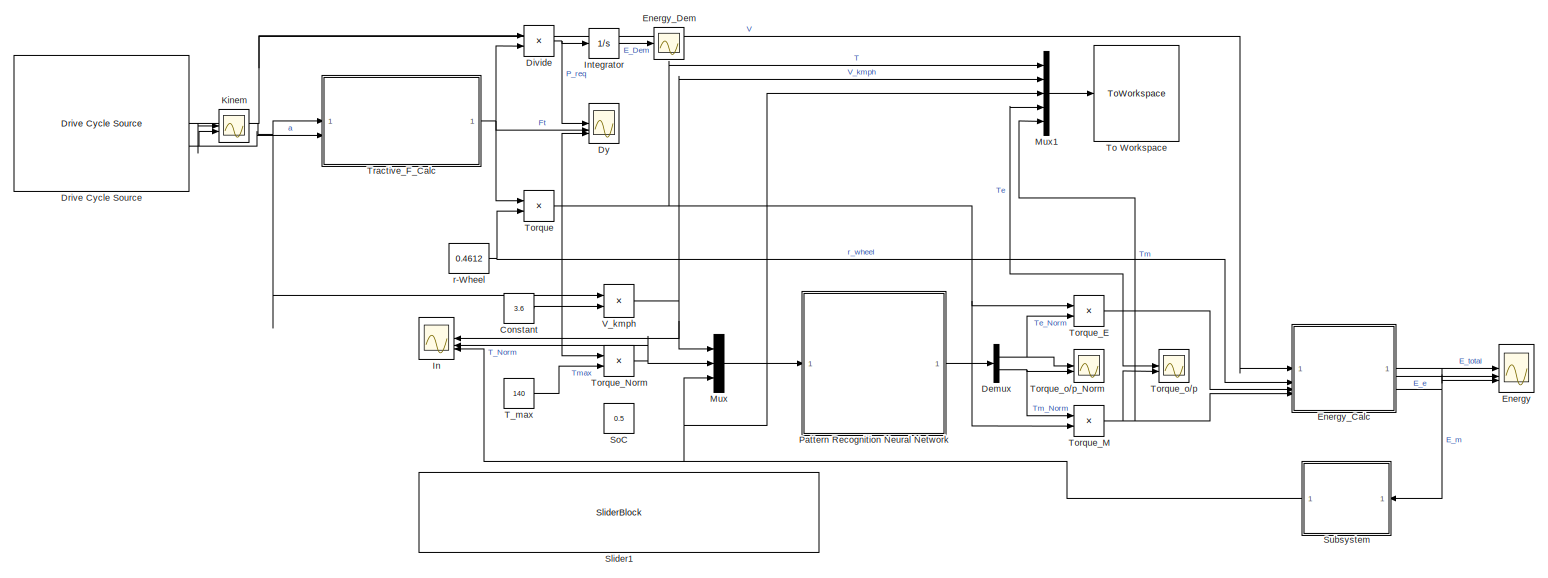
[diagram: root canvas - part 1/1, most of the canvas]
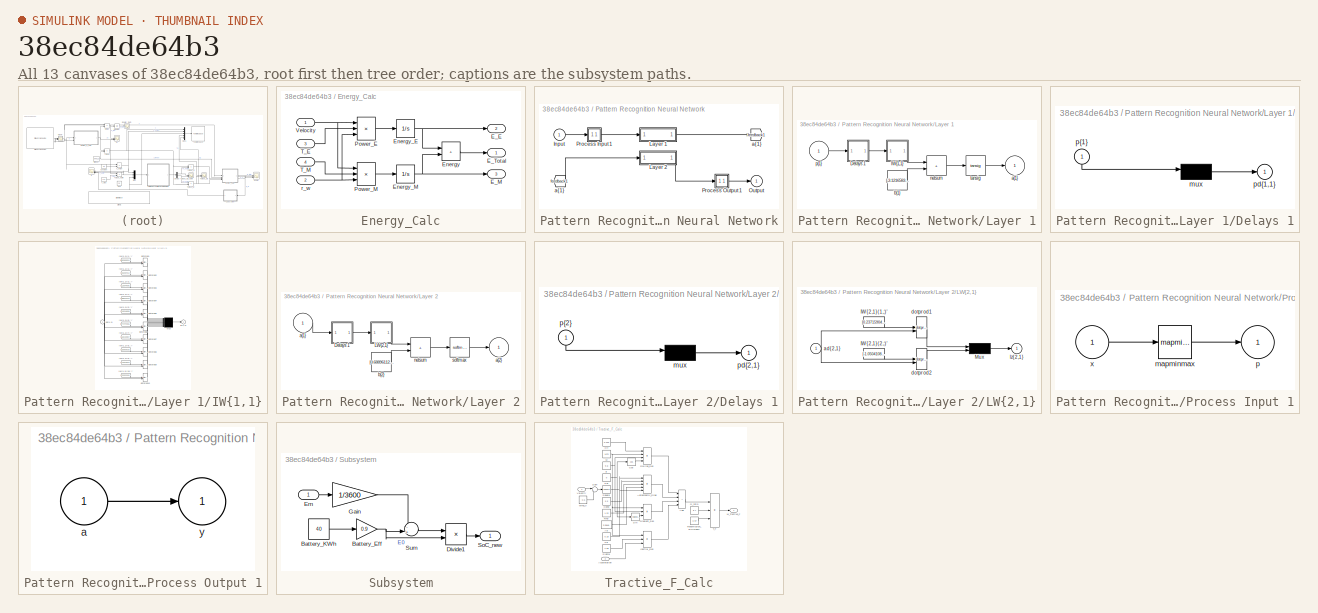
[diagram: thumbnail index - all 13 canvases of the model, root first then tree order]
MODEL slx_38ec84de64b3
KIND model
CONFIG AbsTol = auto
CONFIG EnableMultiTasking = off
CONFIG FixedStep = auto
CONFIG MaxStep = auto
CONFIG MinStep = auto
CONFIG RelTol = 1e-3
CONFIG SampleTimeConstraint = Unconstrained
CONFIG SolverName = VariableStepAuto
CONFIG StartTime = 0.0
CONFIG StopTime = 2000
BLOCK [Constant] Constant
  Value = 3.6
BLOCK [Demux] Demux
  Outputs = 2
BLOCK [Product] Divide
  Inputs = **
BLOCK [Reference] Drive Cycle Source  REF=autolibshared/Drive Cycle Source
  AttributesFormatString = %<cycleVar> (%<tfinal>)
  LibrarySourceBlock = autolibscenario/Drive Cycle Source
  SourceBlock = autolibshared/Drive Cycle Source
  SourceType = Drive Cycle Source
BLOCK [Scope] Dy
  Floating = off
  NumInputPorts = 3
  ScopeSpecificationString = Simulink.scopes.TimeScopeBlockCfg('CurrentConfiguration', extmgr.ConfigurationSet(extmgr.Configuration('Core','General UI',true),extmgr.Configuration('Core','Source UI',true),extmgr.Configuration('Sources','WiredSimulink',true,'DataLoggingVariableName','ScopeData1'),extmgr.Configuration('Visuals','Time Domain',true,'SerializedDisplays',{struct('MinYLimReal','-21822.95238','MaxYLimReal','14217.5913...<+2791ch>
BLOCK [Scope] Energy
  Floating = off
  NumInputPorts = 3
  ScopeSpecificationString = Simulink.scopes.TimeScopeBlockCfg('CurrentConfiguration', extmgr.ConfigurationSet(extmgr.Configuration('Core','General UI',true),extmgr.Configuration('Core','Source UI',true),extmgr.Configuration('Sources','WiredSimulink',true,'DataLoggingVariableName','ScopeData2'),extmgr.Configuration('Visuals','Time Domain',true,'SerializedDisplays',{struct('MinYLimReal','-52368.08056','MaxYLimReal','471312.725...<+1439ch>
BLOCK [SubSystem] Energy_Calc
BLOCK [Outport] Energy_Calc/E_E
  Port = 2
BLOCK [Outport] Energy_Calc/E_M
  Port = 3
BLOCK [Outport] Energy_Calc/E_Total
BLOCK [Sum] Energy_Calc/Energy
  IconShape = rectangular
BLOCK [Integrator] Energy_Calc/Energy_E
BLOCK [Integrator] Energy_Calc/Energy_M
BLOCK [Product] Energy_Calc/Power_E
  Inputs = **/
BLOCK [Product] Energy_Calc/Power_M
  Inputs = **/
BLOCK [Inport] Energy_Calc/T_E
  Port = 3
BLOCK [Inport] Energy_Calc/T_M
  Port = 4
BLOCK [Inport] Energy_Calc/Velocity
BLOCK [Inport] Energy_Calc/r_w
  Port = 2
BLOCK [Scope] Energy_Dem
  Floating = off
  NumInputPorts = 1
  ScopeSpecificationString = Simulink.scopes.TimeScopeBlockCfg('CurrentConfiguration', extmgr.ConfigurationSet(extmgr.Configuration('Core','General UI',true),extmgr.Configuration('Core','Source UI',true),extmgr.Configuration('Sources','WiredSimulink',true,'DataLoggingVariableName','ScopeData1'),extmgr.Configuration('Visuals','Time Domain',true,'SerializedDisplays',{struct('MinYLimReal','-52368.08056','MaxYLimReal','471312.725...<+1398ch>
BLOCK [Scope] In
  Floating = off
  NumInputPorts = 3
  ScopeSpecificationString = Simulink.scopes.TimeScopeBlockCfg('CurrentConfiguration', extmgr.ConfigurationSet(extmgr.Configuration('Core','General UI',true),extmgr.Configuration('Core','Source UI',true),extmgr.Configuration('Sources','WiredSimulink',true,'DataLoggingVariableName','ScopeData3'),extmgr.Configuration('Visuals','Time Domain',true,'SerializedDisplays',{struct('MinYLimReal','-20.10896','MaxYLimReal','103.623','YLa...<+2842ch>
BLOCK [Integrator] Integrator
BLOCK [Scope] Kinem
  Floating = off
  NumInputPorts = 2
  ScopeSpecificationString = Simulink.scopes.TimeScopeBlockCfg('CurrentConfiguration', extmgr.ConfigurationSet(extmgr.Configuration('Core','General UI',true),extmgr.Configuration('Core','Source UI',true),extmgr.Configuration('Sources','WiredSimulink',true,'DataLoggingVariableName','ScopeData4'),extmgr.Configuration('Visuals','Time Domain',true,'SerializedDisplays',{struct('MinYLimReal','-2.35069','MaxYLimReal','17.71793','YLa...<+2079ch>
BLOCK [Mux] Mux
  DisplayOption = bar
  Inputs = 3
BLOCK [Mux] Mux1
  DisplayOption = bar
  Inputs = 5
BLOCK [SubSystem] Pattern Recognition Neural Network
BLOCK [From] Pattern Recognition Neural Network/ a{1} 
  GotoTag = feedback1
BLOCK [Inport] Pattern Recognition Neural Network/Input
  PortDimensions = 3
BLOCK [SubSystem] Pattern Recognition Neural Network/Layer 1
BLOCK [SubSystem] Pattern Recognition Neural Network/Layer 1/Delays 1
BLOCK [Mux] Pattern Recognition Neural Network/Layer 1/Delays 1/mux
  Inputs = 1
BLOCK [Outport] Pattern Recognition Neural Network/Layer 1/Delays 1/pd{1,1}
BLOCK [Inport] Pattern Recognition Neural Network/Layer 1/Delays 1/p{1}
  NameLocation = left
  PortDimensions = 3
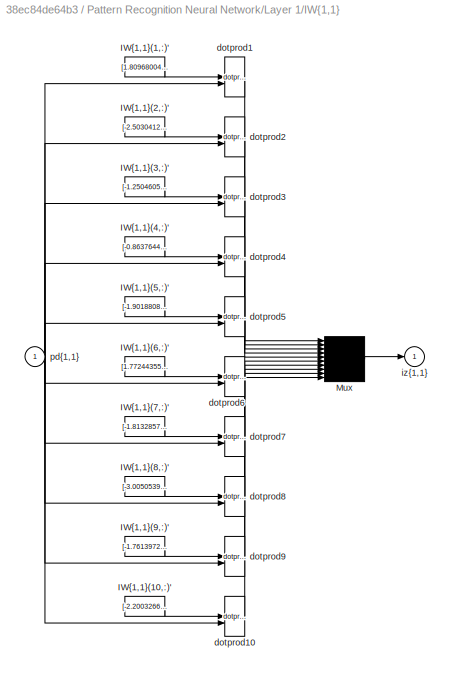
BLOCK [SubSystem] Pattern Recognition Neural Network/Layer 1/IW{1,1}
BLOCK [Constant] Pattern Recognition Neural Network/Layer 1/IW{1,1}/IW{1,1}(1,:)'
  Value = [1.809680049341583885080808613565750420093536376953125;-1.29803274419095071579022260266356170177459716796875;-1.94721369430825319568612030707299709320068359375]
BLOCK [Constant] Pattern Recognition Neural Network/Layer 1/IW{1,1}/IW{1,1}(10,:)'
  Value = [-2.200326649964929881519992704852484166622161865234375;-1.98434002242419982309229453676380217075347900390625;-0.55582207143615691702365211313008330762386322021484375]
BLOCK [Constant] Pattern Recognition Neural Network/Layer 1/IW{1,1}/IW{1,1}(2,:)'
  Value = [-2.503041277885068804920365437283180654048919677734375;-1.7035232227626651013707714810152538120746612548828125;0.7293309221858608193400641539483331143856048583984375]
BLOCK [Constant] Pattern Recognition Neural Network/Layer 1/IW{1,1}/IW{1,1}(3,:)'
  Value = [-1.25046052203992008600152985309250652790069580078125;1.920277686016429452564580060425214469432830810546875;-1.1156783076317129399512850795872509479522705078125]
BLOCK [Constant] Pattern Recognition Neural Network/Layer 1/IW{1,1}/IW{1,1}(4,:)'
  Value = [-0.8637644016829726378858822499751113355159759521484375;-1.059879753117998202327498802333138883113861083984375;2.486037393602149148108537701773457229137420654296875]
BLOCK [Constant] Pattern Recognition Neural Network/Layer 1/IW{1,1}/IW{1,1}(5,:)'
  Value = [-1.90188088004975508482630175421945750713348388671875;-1.4470596636521062539060267226886935532093048095703125;1.214356180292597731096293500741012394428253173828125]
BLOCK [Constant] Pattern Recognition Neural Network/Layer 1/IW{1,1}/IW{1,1}(6,:)'
  Value = [1.77244355559165267521848363685421645641326904296875;2.226945650451896074883961773593910038471221923828125;-1.298928939221272838011600470053963363170623779296875]
BLOCK [Constant] Pattern Recognition Neural Network/Layer 1/IW{1,1}/IW{1,1}(7,:)'
  Value = [-1.8132857848954564428112234963919036090373992919921875;3.634415364983365481776900196564383804798126220703125;-0.6002354328806307481869453113176859915256500244140625]
BLOCK [Constant] Pattern Recognition Neural Network/Layer 1/IW{1,1}/IW{1,1}(8,:)'
  Value = [-3.005053989436847761140825241454876959323883056640625;0.0740553817627963850700467673959792591631412506103515625;-1.320698064026931017878041529911570250988006591796875]
BLOCK [Constant] Pattern Recognition Neural Network/Layer 1/IW{1,1}/IW{1,1}(9,:)'
  Value = [-1.7613972260887365006709615045110695064067840576171875;-2.45115492950296864904657923034392297267913818359375;-0.58885496176574603222064752117148600518703460693359375]
BLOCK [Mux] Pattern Recognition Neural Network/Layer 1/IW{1,1}/Mux
  Inputs = 10
BLOCK [Reference] Pattern Recognition Neural Network/Layer 1/IW{1,1}/dotprod1  REF=neural/Weight Functions/dotprod
  SourceBlock = neural/Weight Functions/dotprod
  SourceType = DOTPROD
BLOCK [Reference] Pattern Recognition Neural Network/Layer 1/IW{1,1}/dotprod10  REF=neural/Weight Functions/dotprod
  SourceBlock = neural/Weight Functions/dotprod
  SourceType = DOTPROD
BLOCK [Reference] Pattern Recognition Neural Network/Layer 1/IW{1,1}/dotprod2  REF=neural/Weight Functions/dotprod
  SourceBlock = neural/Weight Functions/dotprod
  SourceType = DOTPROD
BLOCK [Reference] Pattern Recognition Neural Network/Layer 1/IW{1,1}/dotprod3  REF=neural/Weight Functions/dotprod
  SourceBlock = neural/Weight Functions/dotprod
  SourceType = DOTPROD
BLOCK [Reference] Pattern Recognition Neural Network/Layer 1/IW{1,1}/dotprod4  REF=neural/Weight Functions/dotprod
  SourceBlock = neural/Weight Functions/dotprod
  SourceType = DOTPROD
BLOCK [Reference] Pattern Recognition Neural Network/Layer 1/IW{1,1}/dotprod5  REF=neural/Weight Functions/dotprod
  SourceBlock = neural/Weight Functions/dotprod
  SourceType = DOTPROD
BLOCK [Reference] Pattern Recognition Neural Network/Layer 1/IW{1,1}/dotprod6  REF=neural/Weight Functions/dotprod
  SourceBlock = neural/Weight Functions/dotprod
  SourceType = DOTPROD
BLOCK [Reference] Pattern Recognition Neural Network/Layer 1/IW{1,1}/dotprod7  REF=neural/Weight Functions/dotprod
  SourceBlock = neural/Weight Functions/dotprod
  SourceType = DOTPROD
BLOCK [Reference] Pattern Recognition Neural Network/Layer 1/IW{1,1}/dotprod8  REF=neural/Weight Functions/dotprod
  SourceBlock = neural/Weight Functions/dotprod
  SourceType = DOTPROD
BLOCK [Reference] Pattern Recognition Neural Network/Layer 1/IW{1,1}/dotprod9  REF=neural/Weight Functions/dotprod
  SourceBlock = neural/Weight Functions/dotprod
  SourceType = DOTPROD
BLOCK [Outport] Pattern Recognition Neural Network/Layer 1/IW{1,1}/iz{1,1}
BLOCK [Inport] Pattern Recognition Neural Network/Layer 1/IW{1,1}/pd{1,1}
  PortDimensions = 3
BLOCK [Outport] Pattern Recognition Neural Network/Layer 1/a{1}
  InitialOutput = [0;0;0;0;0;0;0;0;0;0]
BLOCK [Constant] Pattern Recognition Neural Network/Layer 1/b{1}
  Value = [-3.121658398044879323407485571806319057941436767578125;2.229780117163802088953161728568375110626220703125;2.4857552880959321583986820769496262073516845703125;1.5696614955376946287657347056665457785129547119140625;0.5999621571822955079511530129821039736270904541015625;1.20668264528445234873288427479565143585205078125;-0.31898327073527088515447758254595100879669189453125;-1.418588157217827605549587...<+137ch>
BLOCK [Sum] Pattern Recognition Neural Network/Layer 1/netsum
  IconShape = rectangular
  InputSameDT = on
  Inputs = 2
  OutDataTypeStr = Inherit: Same as first input
  SaturateOnIntegerOverflow = on
BLOCK [Inport] Pattern Recognition Neural Network/Layer 1/p{1}
  PortDimensions = 3
BLOCK [Reference] Pattern Recognition Neural Network/Layer 1/tansig  REF=neural/Transfer Functions/tansig
  SourceBlock = neural/Transfer Functions/tansig
  SourceType = TANSIG
BLOCK [SubSystem] Pattern Recognition Neural Network/Layer 2
BLOCK [SubSystem] Pattern Recognition Neural Network/Layer 2/Delays 1
BLOCK [Mux] Pattern Recognition Neural Network/Layer 2/Delays 1/mux
  Inputs = 1
BLOCK [Outport] Pattern Recognition Neural Network/Layer 2/Delays 1/pd{2,1}
BLOCK [Inport] Pattern Recognition Neural Network/Layer 2/Delays 1/p{2}
  NameLocation = left
  PortDimensions = 10
BLOCK [SubSystem] Pattern Recognition Neural Network/Layer 2/LW{2,1}
BLOCK [Constant] Pattern Recognition Neural Network/Layer 2/LW{2,1}/IW{2,1}(1,:)'
  Value = [0.237159046583396815321975736878812313079833984375;-0.875724645822264502470488878316245973110198974609375;-0.53529688177007306304489020476466976106166839599609375;-0.226659123707784015966382185069960542023181915283203125;-0.337050941980124918462280447783996351063251495361328125;1.6050257522858271119758910572272725403308868408203125;1.840196591830167704983978183008730411529541015625;-1.27376460610...<+153ch>
BLOCK [Constant] Pattern Recognition Neural Network/Layer 2/LW{2,1}/IW{2,1}(2,:)'
  Value = [-1.0504108830810727770455059726373292505741119384765625;1.0027183607584071456386709542130120098590850830078125;0.451445715850454565298832676489837467670440673828125;0.6645387970258480603291673105559311807155609130859375;-0.031331776429953640816794546708479174412786960601806640625;-0.7611510173521391919848610996268689632415771484375;-1.7043134927442284975995789864100515842437744140625;0.7147488673...<+156ch>
BLOCK [Mux] Pattern Recognition Neural Network/Layer 2/LW{2,1}/Mux
  Inputs = 2
BLOCK [Inport] Pattern Recognition Neural Network/Layer 2/LW{2,1}/ad{2,1}
  PortDimensions = 10
BLOCK [Reference] Pattern Recognition Neural Network/Layer 2/LW{2,1}/dotprod1  REF=neural/Weight Functions/dotprod
  SourceBlock = neural/Weight Functions/dotprod
  SourceType = DOTPROD
BLOCK [Reference] Pattern Recognition Neural Network/Layer 2/LW{2,1}/dotprod2  REF=neural/Weight Functions/dotprod
  SourceBlock = neural/Weight Functions/dotprod
  SourceType = DOTPROD
BLOCK [Outport] Pattern Recognition Neural Network/Layer 2/LW{2,1}/lz{2,1}
BLOCK [Inport] Pattern Recognition Neural Network/Layer 2/a{1} 
  PortDimensions = 10
BLOCK [Outport] Pattern Recognition Neural Network/Layer 2/a{2}
  InitialOutput = [0;0]
BLOCK [Constant] Pattern Recognition Neural Network/Layer 2/b{2}
  Value = [0.68896112024296984888138695168890990316867828369140625;-0.6375193814406003856021243336726911365985870361328125]
BLOCK [Sum] Pattern Recognition Neural Network/Layer 2/netsum
  IconShape = rectangular
  InputSameDT = on
  Inputs = 2
  OutDataTypeStr = Inherit: Same as first input
  SaturateOnIntegerOverflow = on
BLOCK [Reference] Pattern Recognition Neural Network/Layer 2/softmax  REF=neural/Transfer Functions/softmax
  SourceBlock = neural/Transfer Functions/softmax
  SourceType = SOFTMAX
BLOCK [Outport] Pattern Recognition Neural Network/Output
  InitialOutput = [0;0]
BLOCK [SubSystem] Pattern Recognition Neural Network/Process Input 1
BLOCK [Reference] Pattern Recognition Neural Network/Process Input 1/mapminmax  REF=neural/Processing Functions/mapminmax
  SourceBlock = neural/Processing Functions/mapminmax
  SourceType = MAPMINMAX Preprocess
BLOCK [Outport] Pattern Recognition Neural Network/Process Input 1/p
  PortDimensions = 3
BLOCK [Inport] Pattern Recognition Neural Network/Process Input 1/x
  PortDimensions = 3
BLOCK [SubSystem] Pattern Recognition Neural Network/Process Output 1
BLOCK [Inport] Pattern Recognition Neural Network/Process Output 1/a
  PortDimensions = 2
BLOCK [Outport] Pattern Recognition Neural Network/Process Output 1/y
  PortDimensions = 2
BLOCK [Goto] Pattern Recognition Neural Network/a{1}
  GotoTag = feedback1
BLOCK [SliderBlock] Slider1
  ScaleMax = 1
BLOCK [Constant] SoC
  Value = 0.5
BLOCK [SubSystem] Subsystem
BLOCK [Gain] Subsystem/Battery_Eff
  Gain = 0.9
BLOCK [Constant] Subsystem/Battery_KWh
  Value = 40
BLOCK [Product] Subsystem/Divide1
  Inputs = */
BLOCK [Inport] Subsystem/Em
BLOCK [Gain] Subsystem/Gain
  Gain = 1/3600
BLOCK [Outport] Subsystem/SoC_new
BLOCK [Sum] Subsystem/Sum
  Inputs = -+|
BLOCK [Constant] T_max
  Value = 140
BLOCK [ToWorkspace] To Workspace
  MaxDataPoints = inf
  SampleTime = -1
  SaveFormat = Timeseries
  VariableName = Graph
BLOCK [Product] Torque
  Inputs = **
BLOCK [Product] Torque_E
  Inputs = **
BLOCK [Product] Torque_M
  Inputs = **
BLOCK [Product] Torque_Norm
  Inputs = */
BLOCK [Scope] Torque_o//p
  Floating = off
  NumInputPorts = 2
  ScopeSpecificationString = Simulink.scopes.TimeScopeBlockCfg('CurrentConfiguration', extmgr.ConfigurationSet(extmgr.Configuration('Core','General UI',true),extmgr.Configuration('Core','Source UI',true),extmgr.Configuration('Sources','WiredSimulink',true,'DataLoggingVariableName','ScopeData5'),extmgr.Configuration('Visuals','Time Domain',true,'SerializedDisplays',{struct('MinYLimReal','-10.22644','MaxYLimReal','124.49102','Y...<+2065ch>
BLOCK [Scope] Torque_o//p_Norm
  Floating = off
  NumInputPorts = 2
  ScopeSpecificationString = Simulink.scopes.TimeScopeBlockCfg('CurrentConfiguration', extmgr.ConfigurationSet(extmgr.Configuration('Core','General UI',true),extmgr.Configuration('Core','Source UI',true),extmgr.Configuration('Sources','WiredSimulink',true,'DataLoggingVariableName','ScopeData6'),extmgr.Configuration('Visuals','Time Domain',true,'SerializedDisplays',{struct('MinYLimReal','-0.11963','MaxYLimReal','1.121','YLabel...<+2030ch>
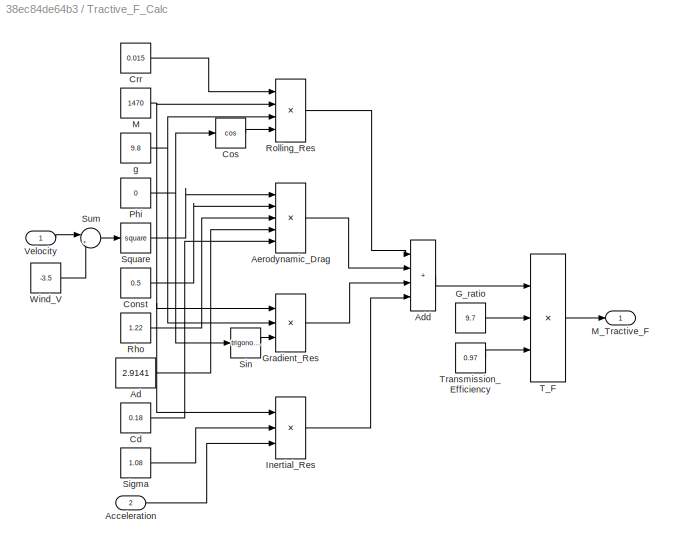
BLOCK [SubSystem] Tractive_F_Calc
BLOCK [Inport] Tractive_F_Calc/Acceleration
  Port = 2
BLOCK [Constant] Tractive_F_Calc/Ad
  Value = 2.9141
BLOCK [Sum] Tractive_F_Calc/Add
  IconShape = rectangular
  Inputs = ++++
BLOCK [Product] Tractive_F_Calc/Aerodynamic_Drag
  Inputs = *****
BLOCK [Constant] Tractive_F_Calc/Cd
  Value = 0.18
BLOCK [Constant] Tractive_F_Calc/Const
  Value = 0.5
BLOCK [Trigonometry] Tractive_F_Calc/Cos
  Operator = cos
BLOCK [Constant] Tractive_F_Calc/Crr
  Value = 0.015
BLOCK [Constant] Tractive_F_Calc/G_ratio
  Value = 9.7
BLOCK [Product] Tractive_F_Calc/Gradient_Res
  Inputs = ***
BLOCK [Product] Tractive_F_Calc/Inertial_Res
  Inputs = ***
BLOCK [Constant] Tractive_F_Calc/M
  Value = 1470
BLOCK [Outport] Tractive_F_Calc/M_Tractive_F
BLOCK [Constant] Tractive_F_Calc/Phi
  Value = 0
BLOCK [Constant] Tractive_F_Calc/Rho
  Value = 1.22
BLOCK [Product] Tractive_F_Calc/Rolling_Res
  Inputs = ****
BLOCK [Constant] Tractive_F_Calc/Sigma
  Value = 1.08
BLOCK [Trigonometry] Tractive_F_Calc/Sin
BLOCK [Math] Tractive_F_Calc/Square
  Operator = square
BLOCK [Sum] Tractive_F_Calc/Sum
  Inputs = |+-
BLOCK [Product] Tractive_F_Calc/T_F
  Inputs = *//
BLOCK [Constant] Tractive_F_Calc/Transmission_Efficiency
  Value = 0.97
BLOCK [Inport] Tractive_F_Calc/Velocity
BLOCK [Constant] Tractive_F_Calc/Wind_V
  Value = -3.5
BLOCK [Constant] Tractive_F_Calc/g
  Value = 9.8
BLOCK [Product] V_kmph
  Inputs = **
BLOCK [Constant] r-Wheel
  Value = 0.4612
LINE Constant:1 -> V_kmph:2
NET Demux:1 -> Torque_E:2, Torque_o//p_Norm:1
NET Demux:2 -> Torque_M:1, Torque_o//p_Norm:2
NET Divide:1 -> Dy:1, Integrator:1
NET Drive Cycle Source:1 -> Divide:1, Energy_Calc:1, Kinem:1, Tractive_F_Calc:1, V_kmph:1
NET Drive Cycle Source:2 -> Kinem:2, Tractive_F_Calc:2
LINE Energy_Calc/Energy:1 -> Energy_Calc/E_Total:1
NET Energy_Calc/Energy_E:1 -> Energy_Calc/E_E:1, Energy_Calc/Energy:1
NET Energy_Calc/Energy_M:1 -> Energy_Calc/E_M:1, Energy_Calc/Energy:2
LINE Energy_Calc/Power_E:1 -> Energy_Calc/Energy_E:1
LINE Energy_Calc/Power_M:1 -> Energy_Calc/Energy_M:1
LINE Energy_Calc/T_E:1 -> Energy_Calc/Power_E:2
LINE Energy_Calc/T_M:1 -> Energy_Calc/Power_M:2
NET Energy_Calc/Velocity:1 -> Energy_Calc/Power_E:1, Energy_Calc/Power_M:1
NET Energy_Calc/r_w:1 -> Energy_Calc/Power_E:3, Energy_Calc/Power_M:3
LINE Energy_Calc:1 -> Energy:1
LINE Energy_Calc:2 -> Energy:2
NET Energy_Calc:3 -> Energy:3, Subsystem:1
LINE Integrator:1 -> Energy_Dem:1
LINE Mux1:1 -> To Workspace:1
LINE Mux:1 -> Pattern Recognition Neural Network:1
LINE Pattern Recognition Neural Network/ a{1} :1 -> Pattern Recognition Neural Network/Layer 2:1
LINE Pattern Recognition Neural Network/Input:1 -> Pattern Recognition Neural Network/Process Input 1:1
LINE Pattern Recognition Neural Network/Layer 1/Delays 1/mux:1 -> Pattern Recognition Neural Network/Layer 1/Delays 1/pd{1,1}:1
LINE Pattern Recognition Neural Network/Layer 1/Delays 1/p{1}:1 -> Pattern Recognition Neural Network/Layer 1/Delays 1/mux:1
LINE Pattern Recognition Neural Network/Layer 1/Delays 1:1 -> Pattern Recognition Neural Network/Layer 1/IW{1,1}:1
LINE Pattern Recognition Neural Network/Layer 1/IW{1,1}/IW{1,1}(1,:)':1 -> Pattern Recognition Neural Network/Layer 1/IW{1,1}/dotprod1:1
LINE Pattern Recognition Neural Network/Layer 1/IW{1,1}/IW{1,1}(10,:)':1 -> Pattern Recognition Neural Network/Layer 1/IW{1,1}/dotprod10:1
LINE Pattern Recognition Neural Network/Layer 1/IW{1,1}/IW{1,1}(2,:)':1 -> Pattern Recognition Neural Network/Layer 1/IW{1,1}/dotprod2:1
LINE Pattern Recognition Neural Network/Layer 1/IW{1,1}/IW{1,1}(3,:)':1 -> Pattern Recognition Neural Network/Layer 1/IW{1,1}/dotprod3:1
LINE Pattern Recognition Neural Network/Layer 1/IW{1,1}/IW{1,1}(4,:)':1 -> Pattern Recognition Neural Network/Layer 1/IW{1,1}/dotprod4:1
LINE Pattern Recognition Neural Network/Layer 1/IW{1,1}/IW{1,1}(5,:)':1 -> Pattern Recognition Neural Network/Layer 1/IW{1,1}/dotprod5:1
LINE Pattern Recognition Neural Network/Layer 1/IW{1,1}/IW{1,1}(6,:)':1 -> Pattern Recognition Neural Network/Layer 1/IW{1,1}/dotprod6:1
LINE Pattern Recognition Neural Network/Layer 1/IW{1,1}/IW{1,1}(7,:)':1 -> Pattern Recognition Neural Network/Layer 1/IW{1,1}/dotprod7:1
LINE Pattern Recognition Neural Network/Layer 1/IW{1,1}/IW{1,1}(8,:)':1 -> Pattern Recognition Neural Network/Layer 1/IW{1,1}/dotprod8:1
LINE Pattern Recognition Neural Network/Layer 1/IW{1,1}/IW{1,1}(9,:)':1 -> Pattern Recognition Neural Network/Layer 1/IW{1,1}/dotprod9:1
LINE Pattern Recognition Neural Network/Layer 1/IW{1,1}/Mux:1 -> Pattern Recognition Neural Network/Layer 1/IW{1,1}/iz{1,1}:1
LINE Pattern Recognition Neural Network/Layer 1/IW{1,1}/dotprod10:1 -> Pattern Recognition Neural Network/Layer 1/IW{1,1}/Mux:10
LINE Pattern Recognition Neural Network/Layer 1/IW{1,1}/dotprod1:1 -> Pattern Recognition Neural Network/Layer 1/IW{1,1}/Mux:1
LINE Pattern Recognition Neural Network/Layer 1/IW{1,1}/dotprod2:1 -> Pattern Recognition Neural Network/Layer 1/IW{1,1}/Mux:2
LINE Pattern Recognition Neural Network/Layer 1/IW{1,1}/dotprod3:1 -> Pattern Recognition Neural Network/Layer 1/IW{1,1}/Mux:3
LINE Pattern Recognition Neural Network/Layer 1/IW{1,1}/dotprod4:1 -> Pattern Recognition Neural Network/Layer 1/IW{1,1}/Mux:4
LINE Pattern Recognition Neural Network/Layer 1/IW{1,1}/dotprod5:1 -> Pattern Recognition Neural Network/Layer 1/IW{1,1}/Mux:5
LINE Pattern Recognition Neural Network/Layer 1/IW{1,1}/dotprod6:1 -> Pattern Recognition Neural Network/Layer 1/IW{1,1}/Mux:6
LINE Pattern Recognition Neural Network/Layer 1/IW{1,1}/dotprod7:1 -> Pattern Recognition Neural Network/Layer 1/IW{1,1}/Mux:7
LINE Pattern Recognition Neural Network/Layer 1/IW{1,1}/dotprod8:1 -> Pattern Recognition Neural Network/Layer 1/IW{1,1}/Mux:8
LINE Pattern Recognition Neural Network/Layer 1/IW{1,1}/dotprod9:1 -> Pattern Recognition Neural Network/Layer 1/IW{1,1}/Mux:9
NET Pattern Recognition Neural Network/Layer 1/IW{1,1}/pd{1,1}:1 -> Pattern Recognition Neural Network/Layer 1/IW{1,1}/dotprod10:2, Pattern Recognition Neural Network/Layer 1/IW{1,1}/dotprod1:2, Pattern Recognition Neural Network/Layer 1/IW{1,1}/dotprod2:2, Pattern Recognition Neural Network/Layer 1/IW{1,1}/dotprod3:2, Pattern Recognition Neural Network/Layer 1/IW{1,1}/dotprod4:2, Pattern Recognition Neural Network/Layer 1/IW{1,1}/dotprod5:2, Pattern Recognition Neural Network/Layer 1/IW{1,1}/dotprod6:2, Pattern Recognition Neural Network/Layer 1/IW{1,1}/dotprod7:2, Pattern Recognition Neural Network/Layer 1/IW{1,1}/dotprod8:2, Pattern Recognition Neural Network/Layer 1/IW{1,1}/dotprod9:2
LINE Pattern Recognition Neural Network/Layer 1/IW{1,1}:1 -> Pattern Recognition Neural Network/Layer 1/netsum:1
LINE Pattern Recognition Neural Network/Layer 1/b{1}:1 -> Pattern Recognition Neural Network/Layer 1/netsum:2
LINE Pattern Recognition Neural Network/Layer 1/netsum:1 -> Pattern Recognition Neural Network/Layer 1/tansig:1
LINE Pattern Recognition Neural Network/Layer 1/p{1}:1 -> Pattern Recognition Neural Network/Layer 1/Delays 1:1
LINE Pattern Recognition Neural Network/Layer 1/tansig:1 -> Pattern Recognition Neural Network/Layer 1/a{1}:1
LINE Pattern Recognition Neural Network/Layer 1:1 -> Pattern Recognition Neural Network/a{1}:1
LINE Pattern Recognition Neural Network/Layer 2/Delays 1/mux:1 -> Pattern Recognition Neural Network/Layer 2/Delays 1/pd{2,1}:1
LINE Pattern Recognition Neural Network/Layer 2/Delays 1/p{2}:1 -> Pattern Recognition Neural Network/Layer 2/Delays 1/mux:1
LINE Pattern Recognition Neural Network/Layer 2/Delays 1:1 -> Pattern Recognition Neural Network/Layer 2/LW{2,1}:1
LINE Pattern Recognition Neural Network/Layer 2/LW{2,1}/IW{2,1}(1,:)':1 -> Pattern Recognition Neural Network/Layer 2/LW{2,1}/dotprod1:1
LINE Pattern Recognition Neural Network/Layer 2/LW{2,1}/IW{2,1}(2,:)':1 -> Pattern Recognition Neural Network/Layer 2/LW{2,1}/dotprod2:1
LINE Pattern Recognition Neural Network/Layer 2/LW{2,1}/Mux:1 -> Pattern Recognition Neural Network/Layer 2/LW{2,1}/lz{2,1}:1
NET Pattern Recognition Neural Network/Layer 2/LW{2,1}/ad{2,1}:1 -> Pattern Recognition Neural Network/Layer 2/LW{2,1}/dotprod1:2, Pattern Recognition Neural Network/Layer 2/LW{2,1}/dotprod2:2
LINE Pattern Recognition Neural Network/Layer 2/LW{2,1}/dotprod1:1 -> Pattern Recognition Neural Network/Layer 2/LW{2,1}/Mux:1
LINE Pattern Recognition Neural Network/Layer 2/LW{2,1}/dotprod2:1 -> Pattern Recognition Neural Network/Layer 2/LW{2,1}/Mux:2
LINE Pattern Recognition Neural Network/Layer 2/LW{2,1}:1 -> Pattern Recognition Neural Network/Layer 2/netsum:1
LINE Pattern Recognition Neural Network/Layer 2/a{1} :1 -> Pattern Recognition Neural Network/Layer 2/Delays 1:1
LINE Pattern Recognition Neural Network/Layer 2/b{2}:1 -> Pattern Recognition Neural Network/Layer 2/netsum:2
LINE Pattern Recognition Neural Network/Layer 2/netsum:1 -> Pattern Recognition Neural Network/Layer 2/softmax:1
LINE Pattern Recognition Neural Network/Layer 2/softmax:1 -> Pattern Recognition Neural Network/Layer 2/a{2}:1
LINE Pattern Recognition Neural Network/Layer 2:1 -> Pattern Recognition Neural Network/Process Output 1:1
LINE Pattern Recognition Neural Network/Process Input 1/mapminmax:1 -> Pattern Recognition Neural Network/Process Input 1/p:1
LINE Pattern Recognition Neural Network/Process Input 1/x:1 -> Pattern Recognition Neural Network/Process Input 1/mapminmax:1
LINE Pattern Recognition Neural Network/Process Input 1:1 -> Pattern Recognition Neural Network/Layer 1:1
LINE Pattern Recognition Neural Network/Process Output 1/a:1 -> Pattern Recognition Neural Network/Process Output 1/y:1
LINE Pattern Recognition Neural Network/Process Output 1:1 -> Pattern Recognition Neural Network/Output:1
LINE Pattern Recognition Neural Network:1 -> Demux:1
NET Subsystem/Battery_Eff:1 -> Subsystem/Divide1:2, Subsystem/Sum:2
LINE Subsystem/Battery_KWh:1 -> Subsystem/Battery_Eff:1
LINE Subsystem/Divide1:1 -> Subsystem/SoC_new:1
LINE Subsystem/Em:1 -> Subsystem/Gain:1
LINE Subsystem/Gain:1 -> Subsystem/Sum:1
LINE Subsystem/Sum:1 -> Subsystem/Divide1:1
NET Subsystem:1 -> In:3, Mux1:3, Mux:3
LINE T_max:1 -> Torque_Norm:2
NET Torque:1 -> Dy:3, Mux1:1, Torque_E:1, Torque_M:2, Torque_Norm:1
NET Torque_E:1 -> Energy_Calc:3, Mux1:4, Torque_o//p:1
NET Torque_M:1 -> Energy_Calc:4, Mux1:5, Torque_o//p:2
NET Torque_Norm:1 -> In:2, Mux:2
LINE Tractive_F_Calc/Acceleration:1 -> Tractive_F_Calc/Inertial_Res:3
LINE Tractive_F_Calc/Ad:1 -> Tractive_F_Calc/Aerodynamic_Drag:4
LINE Tractive_F_Calc/Add:1 -> Tractive_F_Calc/T_F:1
LINE Tractive_F_Calc/Aerodynamic_Drag:1 -> Tractive_F_Calc/Add:2
LINE Tractive_F_Calc/Cd:1 -> Tractive_F_Calc/Aerodynamic_Drag:5
LINE Tractive_F_Calc/Const:1 -> Tractive_F_Calc/Aerodynamic_Drag:2
LINE Tractive_F_Calc/Cos:1 -> Tractive_F_Calc/Rolling_Res:4
LINE Tractive_F_Calc/Crr:1 -> Tractive_F_Calc/Rolling_Res:1
LINE Tractive_F_Calc/G_ratio:1 -> Tractive_F_Calc/T_F:2
LINE Tractive_F_Calc/Gradient_Res:1 -> Tractive_F_Calc/Add:3
LINE Tractive_F_Calc/Inertial_Res:1 -> Tractive_F_Calc/Add:4
NET Tractive_F_Calc/M:1 -> Tractive_F_Calc/Gradient_Res:1, Tractive_F_Calc/Inertial_Res:1, Tractive_F_Calc/Rolling_Res:2
NET Tractive_F_Calc/Phi:1 -> Tractive_F_Calc/Cos:1, Tractive_F_Calc/Sin:1
LINE Tractive_F_Calc/Rho:1 -> Tractive_F_Calc/Aerodynamic_Drag:3
LINE Tractive_F_Calc/Rolling_Res:1 -> Tractive_F_Calc/Add:1
LINE Tractive_F_Calc/Sigma:1 -> Tractive_F_Calc/Inertial_Res:2
LINE Tractive_F_Calc/Sin:1 -> Tractive_F_Calc/Gradient_Res:3
LINE Tractive_F_Calc/Square:1 -> Tractive_F_Calc/Aerodynamic_Drag:1
LINE Tractive_F_Calc/Sum:1 -> Tractive_F_Calc/Square:1
LINE Tractive_F_Calc/T_F:1 -> Tractive_F_Calc/M_Tractive_F:1
LINE Tractive_F_Calc/Transmission_Efficiency:1 -> Tractive_F_Calc/T_F:3
LINE Tractive_F_Calc/Velocity:1 -> Tractive_F_Calc/Sum:1
LINE Tractive_F_Calc/Wind_V:1 -> Tractive_F_Calc/Sum:2
NET Tractive_F_Calc/g:1 -> Tractive_F_Calc/Gradient_Res:2, Tractive_F_Calc/Rolling_Res:3
NET Tractive_F_Calc:1 -> Divide:2, Dy:2, Torque:1
NET V_kmph:1 -> In:1, Mux1:2, Mux:1
NET r-Wheel:1 -> Energy_Calc:2, Torque:2
note: NET lines group one-source signal fan-out (src -> all destinations, sorted); 1:1 wires keep LINE
